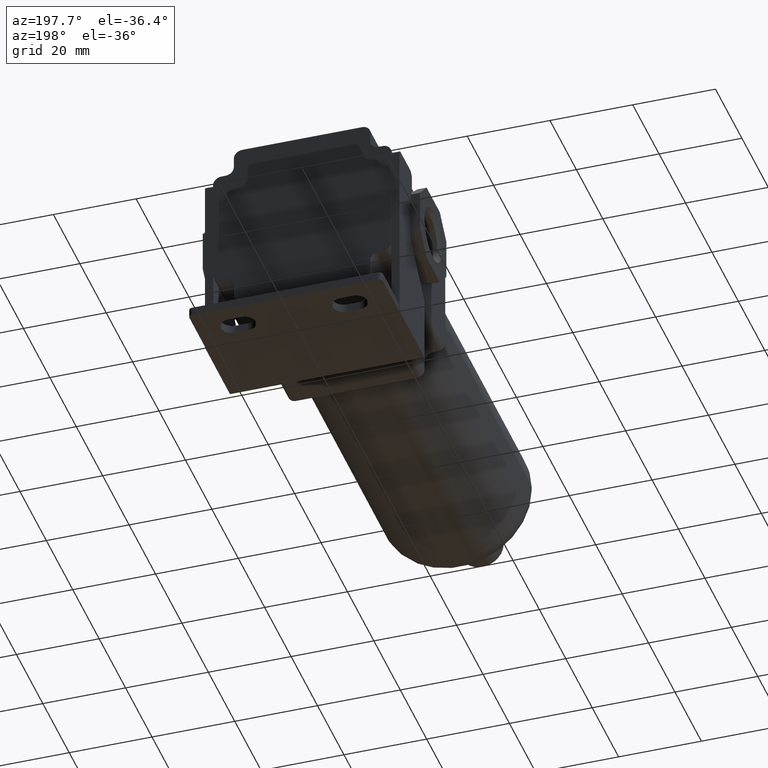
[diagram: clean part render]
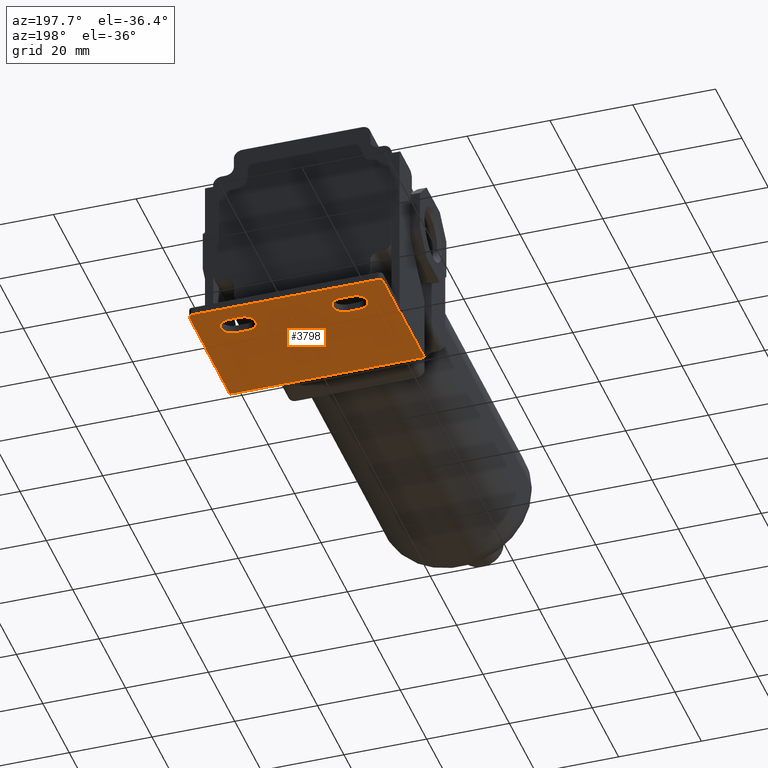
[diagram: same view with one face highlighted and labeled with its STEP entity id]
A machine part, auxiliary view. The second image highlights one B-rep face of the part: STEP entity #3798.
In plain terms, the highlighted planar face has unit normal (0, 0, 1).
Its self-contained STEP definition (entity closure, byte-faithful):
#21 = LINE ( 'NONE', #1980, #2626 ) ;
#88 = EDGE_CURVE ( 'NONE', #352, #2447, #3815, .T. ) ;
#89 = CARTESIAN_POINT ( 'NONE',  ( -15.00000000000000000, 20.30000000000000071, -33.00000000000000000 ) ) ;
#141 = EDGE_CURVE ( 'NONE', #1794, #3469, #965, .T. ) ;
#170 = EDGE_CURVE ( 'NONE', #2617, #3658, #3661, .T. ) ;
#198 = CARTESIAN_POINT ( 'NONE',  ( -15.00000000000000000, 23.00000000000000000, -33.00000000000000000 ) ) ;
#229 = EDGE_CURVE ( 'NONE', #3469, #3026, #1664, .T. ) ;
#250 = AXIS2_PLACEMENT_3D ( 'NONE', #3046, #1854, #2873 ) ;
#258 = ORIENTED_EDGE ( 'NONE', *, *, #308, .T. ) ;
#275 = LINE ( 'NONE', #3240, #1814 ) ;
#276 = ORIENTED_EDGE ( 'NONE', *, *, #88, .T. ) ;
#286 = AXIS2_PLACEMENT_3D ( 'NONE', #420, #1777, #2137 ) ;
#297 = CARTESIAN_POINT ( 'NONE',  ( -12.00000000000000000, 25.69999999999999929, -33.00000000000000000 ) ) ;
#306 = CARTESIAN_POINT ( 'NONE',  ( 22.39999999999999858, 30.00000000000000000, -33.00000000000000000 ) ) ;
#308 = EDGE_CURVE ( 'NONE', #1058, #352, #2742, .T. ) ;
#349 = DIRECTION ( 'NONE',  ( 1.000000000000000000, 0.0000000000000000000, 0.0000000000000000000 ) ) ;
#352 = VERTEX_POINT ( 'NONE', #3136 ) ;
#371 = ORIENTED_EDGE ( 'NONE', *, *, #3105, .T. ) ;
#420 = CARTESIAN_POINT ( 'NONE',  ( 22.40000000000150138, 29.00000000000149925, -33.00000000000000000 ) ) ;
#425 = CARTESIAN_POINT ( 'NONE',  ( 23.50000000000000000, 16.89999999999999858, -33.00000000000000000 ) ) ;
#429 = AXIS2_PLACEMENT_3D ( 'NONE', #198, #2854, #1817 ) ;
#445 = VERTEX_POINT ( 'NONE', #1597 ) ;
#486 = CARTESIAN_POINT ( 'NONE',  ( 15.00000000000000000, 20.30000000000000071, -33.00000000000000000 ) ) ;
#515 = DIRECTION ( 'NONE',  ( 0.0000000000000000000, 0.0000000000000000000, 1.000000000000000000 ) ) ;
#595 = EDGE_CURVE ( 'NONE', #2617, #2729, #21, .T. ) ;
#635 = CARTESIAN_POINT ( 'NONE',  ( -22.40000000000150138, 29.00000000000149925, -33.00000000000000000 ) ) ;
#639 = FACE_BOUND ( 'NONE', #3251, .T. ) ;
#654 = CARTESIAN_POINT ( 'NONE',  ( -23.50000000000000000, 16.89999999999999858, -33.00000000000000000 ) ) ;
#673 = DIRECTION ( 'NONE',  ( 0.0000000000000000000, 1.000000000000000000, 0.0000000000000000000 ) ) ;
#706 = LINE ( 'NONE', #425, #1306 ) ;
#723 = ORIENTED_EDGE ( 'NONE', *, *, #595, .T. ) ;
#847 = EDGE_CURVE ( 'NONE', #445, #2116, #1660, .T. ) ;
#852 = EDGE_CURVE ( 'NONE', #2729, #2506, #3876, .T. ) ;
#867 = EDGE_CURVE ( 'NONE', #2610, #3870, #2613, .T. ) ;
#902 = LINE ( 'NONE', #1861, #3069 ) ;
#908 = CARTESIAN_POINT ( 'NONE',  ( -23.39999999999999858, 29.00000000000000000, -33.00000000000000000 ) ) ;
#957 = EDGE_CURVE ( 'NONE', #2116, #2610, #2642, .T. ) ;
#963 = DIRECTION ( 'NONE',  ( 1.000000000000000000, 0.0000000000000000000, 0.0000000000000000000 ) ) ;
#965 = LINE ( 'NONE', #306, #2631 ) ;
#969 = CARTESIAN_POINT ( 'NONE',  ( 23.50000000000000000, -2.000000000000000000, -33.00000000000000000 ) ) ;
#992 = CARTESIAN_POINT ( 'NONE',  ( 15.00000000000000000, 25.69999999999999929, -33.00000000000000000 ) ) ;
#1004 = DIRECTION ( 'NONE',  ( -1.000000000000000000, -0.0000000000000000000, -0.0000000000000000000 ) ) ;
#1029 = DIRECTION ( 'NONE',  ( -1.000000000000000000, 0.0000000000000000000, 0.0000000000000000000 ) ) ;
#1038 = VECTOR ( 'NONE', #1142, 1000.000000000000000 ) ;
#1058 = VERTEX_POINT ( 'NONE', #3017 ) ;
#1068 = EDGE_CURVE ( 'NONE', #3658, #3750, #706, .T. ) ;
#1134 = CIRCLE ( 'NONE', #286, 1.000000000000000888 ) ;
#1139 = CARTESIAN_POINT ( 'NONE',  ( 23.39999999999999858, 29.00000000000000000, -33.00000000000000000 ) ) ;
#1142 = DIRECTION ( 'NONE',  ( 1.000000000000000000, 0.0000000000000000000, 0.0000000000000000000 ) ) ;
#1227 = CARTESIAN_POINT ( 'NONE',  ( 12.00000000000000000, 20.30000000000000071, -33.00000000000000000 ) ) ;
#1306 = VECTOR ( 'NONE', #2042, 1000.000000000000000 ) ;
#1343 = CARTESIAN_POINT ( 'NONE',  ( 23.50000000000000000, -2.000000000000000000, -33.00000000000000000 ) ) ;
#1353 = ORIENTED_EDGE ( 'NONE', *, *, #3196, .T. ) ;
#1428 = CARTESIAN_POINT ( 'NONE',  ( -23.39999999999999858, 29.00000000000000000, -33.00000000000000000 ) ) ;
#1429 = EDGE_LOOP ( 'NONE', ( #3211, #2798, #1740, #3392 ) ) ;
#1473 = ORIENTED_EDGE ( 'NONE', *, *, #170, .F. ) ;
#1499 = CARTESIAN_POINT ( 'NONE',  ( 23.50000000000000000, 16.89999999999999858, -33.00000000000000000 ) ) ;
#1504 = DIRECTION ( 'NONE',  ( 0.0000000000000000000, 1.000000000000000000, 0.0000000000000000000 ) ) ;
#1562 = DIRECTION ( 'NONE',  ( 0.0000000000000000000, 0.0000000000000000000, 1.000000000000000000 ) ) ;
#1597 = CARTESIAN_POINT ( 'NONE',  ( 12.00000000000000000, 25.69999999999999929, -33.00000000000000000 ) ) ;
#1604 = CARTESIAN_POINT ( 'NONE',  ( 23.39999999999999858, 16.89999999999999858, -33.00000000000000000 ) ) ;
#1622 = CARTESIAN_POINT ( 'NONE',  ( -12.00000000000000000, 23.00000000000000000, -33.00000000000000000 ) ) ;
#1660 = CIRCLE ( 'NONE', #250, 2.700000000000001066 ) ;
#1664 = CIRCLE ( 'NONE', #4168, 1.000000000000000888 ) ;
#1694 = VERTEX_POINT ( 'NONE', #2867 ) ;
#1708 = ORIENTED_EDGE ( 'NONE', *, *, #1068, .F. ) ;
#1724 = VERTEX_POINT ( 'NONE', #1139 ) ;
#1740 = ORIENTED_EDGE ( 'NONE', *, *, #957, .T. ) ;
#1777 = DIRECTION ( 'NONE',  ( 0.0000000000000000000, 0.0000000000000000000, 1.000000000000000000 ) ) ;
#1794 = VERTEX_POINT ( 'NONE', #1836 ) ;
#1814 = VECTOR ( 'NONE', #1938, 1000.000000000000000 ) ;
#1817 = DIRECTION ( 'NONE',  ( 1.000000000000000000, 0.0000000000000000000, 0.0000000000000000000 ) ) ;
#1836 = CARTESIAN_POINT ( 'NONE',  ( 22.39999999999999858, 30.00000000000000000, -33.00000000000000000 ) ) ;
#1854 = DIRECTION ( 'NONE',  ( 0.0000000000000000000, 0.0000000000000000000, 1.000000000000000000 ) ) ;
#1861 = CARTESIAN_POINT ( 'NONE',  ( 15.00000000000000000, 25.69999999999999929, -33.00000000000000000 ) ) ;
#1897 = CIRCLE ( 'NONE', #429, 2.700000000000001066 ) ;
#1908 = ORIENTED_EDGE ( 'NONE', *, *, #1936, .T. ) ;
#1915 = CARTESIAN_POINT ( 'NONE',  ( -22.39999999999999858, 30.00000000000000000, -33.00000000000000000 ) ) ;
#1936 = EDGE_CURVE ( 'NONE', #2447, #1694, #275, .T. ) ;
#1938 = DIRECTION ( 'NONE',  ( -1.000000000000000000, 0.0000000000000000000, 0.0000000000000000000 ) ) ;
#1980 = CARTESIAN_POINT ( 'NONE',  ( 23.50000000000000000, -2.000000000000000000, -33.00000000000000000 ) ) ;
#1983 = LINE ( 'NONE', #654, #2868 ) ;
#2042 = DIRECTION ( 'NONE',  ( -1.000000000000000000, -0.0000000000000000000, -0.0000000000000000000 ) ) ;
#2082 = VECTOR ( 'NONE', #2985, 1000.000000000000000 ) ;
#2116 = VERTEX_POINT ( 'NONE', #3088 ) ;
#2137 = DIRECTION ( 'NONE',  ( 1.000000000000000000, 0.0000000000000000000, 0.0000000000000000000 ) ) ;
#2154 = ORIENTED_EDGE ( 'NONE', *, *, #229, .F. ) ;
#2187 = LINE ( 'NONE', #908, #2229 ) ;
#2229 = VECTOR ( 'NONE', #2513, 1000.000000000000000 ) ;
#2338 = VECTOR ( 'NONE', #1504, 1000.000000000000000 ) ;
#2394 = ORIENTED_EDGE ( 'NONE', *, *, #3023, .F. ) ;
#2447 = VERTEX_POINT ( 'NONE', #297 ) ;
#2506 = VERTEX_POINT ( 'NONE', #4002 ) ;
#2513 = DIRECTION ( 'NONE',  ( 0.0000000000000000000, -1.000000000000000000, 0.0000000000000000000 ) ) ;
#2541 = DIRECTION ( 'NONE',  ( 1.000000000000000000, 0.0000000000000000000, 0.0000000000000000000 ) ) ;
#2555 = PLANE ( 'NONE',  #2723 ) ;
#2570 = DIRECTION ( 'NONE',  ( 0.0000000000000000000, 0.0000000000000000000, 1.000000000000000000 ) ) ;
#2610 = VERTEX_POINT ( 'NONE', #486 ) ;
#2613 = CIRCLE ( 'NONE', #3106, 2.700000000000001066 ) ;
#2617 = VERTEX_POINT ( 'NONE', #3063 ) ;
#2626 = VECTOR ( 'NONE', #1004, 1000.000000000000000 ) ;
#2631 = VECTOR ( 'NONE', #1029, 1000.000000000000000 ) ;
#2642 = LINE ( 'NONE', #1227, #2821 ) ;
#2656 = CARTESIAN_POINT ( 'NONE',  ( -23.39999999999999858, 16.89999999999999858, -33.00000000000000000 ) ) ;
#2683 = ORIENTED_EDGE ( 'NONE', *, *, #2701, .F. ) ;
#2701 = EDGE_CURVE ( 'NONE', #3026, #3254, #2187, .T. ) ;
#2721 = DIRECTION ( 'NONE',  ( 0.0000000000000000000, 0.0000000000000000000, 1.000000000000000000 ) ) ;
#2723 = AXIS2_PLACEMENT_3D ( 'NONE', #969, #1562, #3891 ) ;
#2729 = VERTEX_POINT ( 'NONE', #3851 ) ;
#2742 = LINE ( 'NONE', #89, #1038 ) ;
#2763 = ORIENTED_EDGE ( 'NONE', *, *, #141, .F. ) ;
#2798 = ORIENTED_EDGE ( 'NONE', *, *, #847, .T. ) ;
#2821 = VECTOR ( 'NONE', #2541, 1000.000000000000000 ) ;
#2854 = DIRECTION ( 'NONE',  ( 0.0000000000000000000, 0.0000000000000000000, 1.000000000000000000 ) ) ;
#2867 = CARTESIAN_POINT ( 'NONE',  ( -15.00000000000000000, 25.69999999999999929, -33.00000000000000000 ) ) ;
#2868 = VECTOR ( 'NONE', #963, 1000.000000000000000 ) ;
#2873 = DIRECTION ( 'NONE',  ( 1.000000000000000000, 0.0000000000000000000, 0.0000000000000000000 ) ) ;
#2985 = DIRECTION ( 'NONE',  ( 0.0000000000000000000, 1.000000000000000000, 0.0000000000000000000 ) ) ;
#3002 = ORIENTED_EDGE ( 'NONE', *, *, #852, .T. ) ;
#3017 = CARTESIAN_POINT ( 'NONE',  ( -15.00000000000000000, 20.30000000000000071, -33.00000000000000000 ) ) ;
#3023 = EDGE_CURVE ( 'NONE', #1724, #1794, #1134, .T. ) ;
#3026 = VERTEX_POINT ( 'NONE', #1428 ) ;
#3046 = CARTESIAN_POINT ( 'NONE',  ( 12.00000000000000000, 23.00000000000000000, -33.00000000000000000 ) ) ;
#3063 = CARTESIAN_POINT ( 'NONE',  ( 23.50000000000000000, -2.000000000000000000, -33.00000000000000000 ) ) ;
#3069 = VECTOR ( 'NONE', #3484, 1000.000000000000000 ) ;
#3088 = CARTESIAN_POINT ( 'NONE',  ( 12.00000000000000000, 20.30000000000000071, -33.00000000000000000 ) ) ;
#3098 = EDGE_CURVE ( 'NONE', #3870, #445, #902, .T. ) ;
#3105 = EDGE_CURVE ( 'NONE', #1694, #1058, #1897, .T. ) ;
#3106 = AXIS2_PLACEMENT_3D ( 'NONE', #3543, #515, #3221 ) ;
#3136 = CARTESIAN_POINT ( 'NONE',  ( -12.00000000000000000, 20.30000000000000071, -33.00000000000000000 ) ) ;
#3196 = EDGE_CURVE ( 'NONE', #2506, #3254, #1983, .T. ) ;
#3211 = ORIENTED_EDGE ( 'NONE', *, *, #3098, .T. ) ;
#3221 = DIRECTION ( 'NONE',  ( 1.000000000000000000, 0.0000000000000000000, 0.0000000000000000000 ) ) ;
#3240 = CARTESIAN_POINT ( 'NONE',  ( -12.00000000000000000, 25.69999999999999929, -33.00000000000000000 ) ) ;
#3251 = EDGE_LOOP ( 'NONE', ( #1908, #371, #258, #276 ) ) ;
#3254 = VERTEX_POINT ( 'NONE', #2656 ) ;
#3268 = LINE ( 'NONE', #4295, #4052 ) ;
#3284 = EDGE_CURVE ( 'NONE', #3750, #1724, #3268, .T. ) ;
#3392 = ORIENTED_EDGE ( 'NONE', *, *, #867, .T. ) ;
#3427 = EDGE_LOOP ( 'NONE', ( #3527, #1708, #1473, #723, #3002, #1353, #2683, #2154, #2763, #2394 ) ) ;
#3469 = VERTEX_POINT ( 'NONE', #1915 ) ;
#3484 = DIRECTION ( 'NONE',  ( -1.000000000000000000, 0.0000000000000000000, 0.0000000000000000000 ) ) ;
#3527 = ORIENTED_EDGE ( 'NONE', *, *, #3284, .F. ) ;
#3543 = CARTESIAN_POINT ( 'NONE',  ( 15.00000000000000000, 23.00000000000000000, -33.00000000000000000 ) ) ;
#3658 = VERTEX_POINT ( 'NONE', #1499 ) ;
#3661 = LINE ( 'NONE', #1343, #2082 ) ;
#3748 = AXIS2_PLACEMENT_3D ( 'NONE', #1622, #2570, #3909 ) ;
#3750 = VERTEX_POINT ( 'NONE', #1604 ) ;
#3798 = ADVANCED_FACE ( 'NONE', ( #4217, #639, #4262 ), #2555, .F. ) ;
#3815 = CIRCLE ( 'NONE', #3748, 2.700000000000001066 ) ;
#3851 = CARTESIAN_POINT ( 'NONE',  ( -23.50000000000000000, -2.000000000000000000, -33.00000000000000000 ) ) ;
#3870 = VERTEX_POINT ( 'NONE', #992 ) ;
#3876 = LINE ( 'NONE', #4162, #2338 ) ;
#3891 = DIRECTION ( 'NONE',  ( 1.000000000000000000, 0.0000000000000000000, -0.0000000000000000000 ) ) ;
#3909 = DIRECTION ( 'NONE',  ( 1.000000000000000000, 0.0000000000000000000, 0.0000000000000000000 ) ) ;
#4002 = CARTESIAN_POINT ( 'NONE',  ( -23.50000000000000000, 16.89999999999999858, -33.00000000000000000 ) ) ;
#4052 = VECTOR ( 'NONE', #673, 1000.000000000000000 ) ;
#4162 = CARTESIAN_POINT ( 'NONE',  ( -23.50000000000000000, -2.000000000000000000, -33.00000000000000000 ) ) ;
#4168 = AXIS2_PLACEMENT_3D ( 'NONE', #635, #2721, #349 ) ;
#4217 = FACE_OUTER_BOUND ( 'NONE', #3427, .T. ) ;
#4262 = FACE_BOUND ( 'NONE', #1429, .T. ) ;
#4295 = CARTESIAN_POINT ( 'NONE',  ( 23.39999999999999858, -2.000000000000000000, -33.00000000000000000 ) ) ;